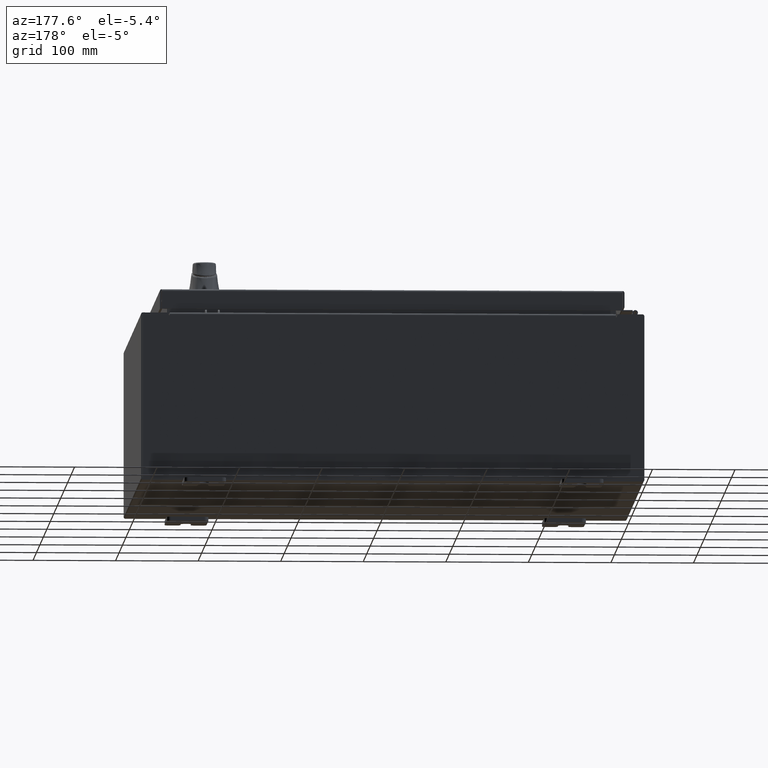
[diagram: clean part render]
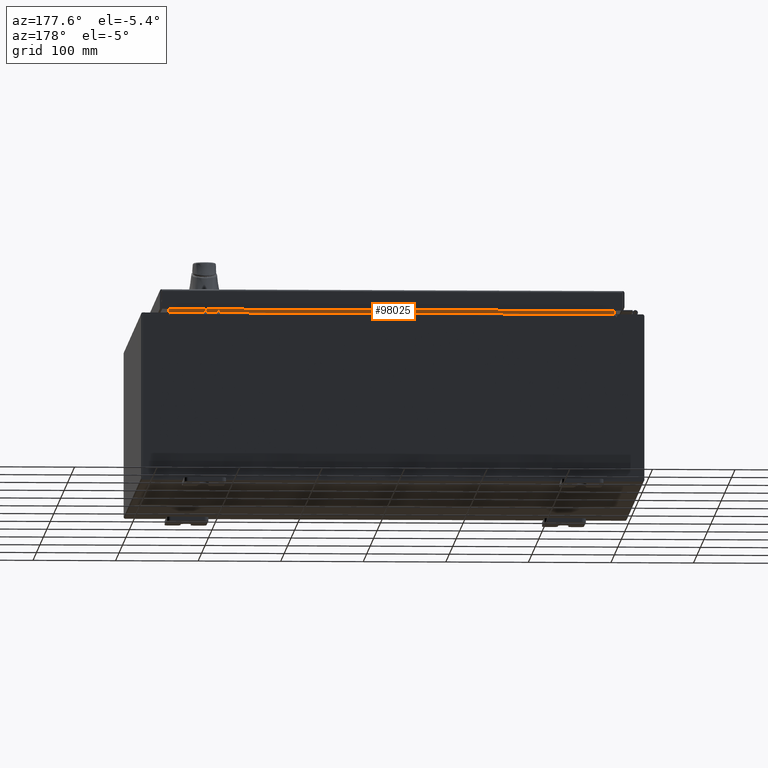
[diagram: same view with one face highlighted and labeled with its STEP entity id]
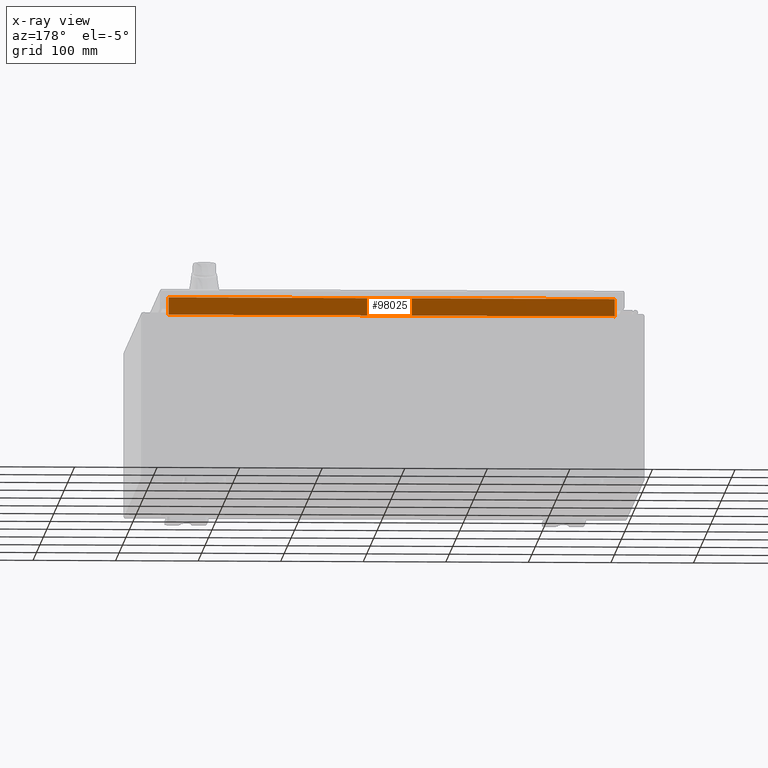
[diagram: x-ray of the same camera — body ghosted, the highlighted face saturated]
A machine part, auxiliary view. The second image highlights one B-rep face of the part: STEP entity #98025.
The next image is the same camera in x-ray: the body ghosted, the highlighted face saturated — about 0% of this face is hidden behind the body in this view.
In plain terms, the highlighted planar face has unit normal (0, 1, 0).
Its self-contained STEP definition (entity closure, byte-faithful):
#211 = AXIS2_PLACEMENT_3D ( 'NONE', #61490, #10353, #70029 ) ;
#1766 = PLANE ( 'NONE',  #211 ) ;
#7578 = ORIENTED_EDGE ( 'NONE', *, *, #43239, .F. ) ;
#7684 = VERTEX_POINT ( 'NONE', #47844 ) ;
#10353 = DIRECTION ( 'NONE',  ( 0.0000000000000000000, 1.000000000000000000, 0.0000000000000000000 ) ) ;
#11329 = CARTESIAN_POINT ( 'NONE',  ( 10.63720000000000200, -1.300299999999999300, 4.837600000000003700 ) ) ;
#13805 = EDGE_LOOP ( 'NONE', ( #7578, #110352, #25969, #47049 ) ) ;
#17099 = FACE_OUTER_BOUND ( 'NONE', #13805, .T. ) ;
#18773 = VERTEX_POINT ( 'NONE', #88611 ) ;
#19527 = EDGE_CURVE ( 'NONE', #35183, #7684, #70127, .T. ) ;
#23637 = LINE ( 'NONE', #32590, #63732 ) ;
#25969 = ORIENTED_EDGE ( 'NONE', *, *, #19527, .F. ) ;
#29836 = EDGE_CURVE ( 'NONE', #36108, #35183, #23637, .T. ) ;
#31854 = CARTESIAN_POINT ( 'NONE',  ( -10.63720000000000400, -1.300299999999999800, 4.013000000000003500 ) ) ;
#32590 = CARTESIAN_POINT ( 'NONE',  ( -10.63720000000000200, -1.300299999999999800, 4.013000000000003500 ) ) ;
#35183 = VERTEX_POINT ( 'NONE', #45127 ) ;
#36108 = VERTEX_POINT ( 'NONE', #31854 ) ;
#37236 = LINE ( 'NONE', #11329, #97330 ) ;
#39351 = VECTOR ( 'NONE', #57560, 39.37007874015748100 ) ;
#41154 = DIRECTION ( 'NONE',  ( 1.000000000000000000, 0.0000000000000000000, -2.568202152506545800E-017 ) ) ;
#43239 = EDGE_CURVE ( 'NONE', #18773, #36108, #43789, .T. ) ;
#43789 = LINE ( 'NONE', #100437, #89203 ) ;
#45127 = CARTESIAN_POINT ( 'NONE',  ( 10.63720000000000400, -1.300299999999999800, 4.013000000000003500 ) ) ;
#47049 = ORIENTED_EDGE ( 'NONE', *, *, #29836, .F. ) ;
#47844 = CARTESIAN_POINT ( 'NONE',  ( 10.63720000000000200, -1.300299999999999800, 4.837600000000003700 ) ) ;
#48537 = CARTESIAN_POINT ( 'NONE',  ( 10.63720000000000200, -1.300299999999999800, 4.925300000000004500 ) ) ;
#49912 = EDGE_CURVE ( 'NONE', #7684, #18773, #37236, .T. ) ;
#57560 = DIRECTION ( 'NONE',  ( -0.0000000000000000000, -0.0000000000000000000, 1.000000000000000000 ) ) ;
#61490 = CARTESIAN_POINT ( 'NONE',  ( 0.0000000000000000000, -1.300299999999999800, 0.0000000000000000000 ) ) ;
#62490 = DIRECTION ( 'NONE',  ( -1.000000000000000000, -0.0000000000000000000, -0.0000000000000000000 ) ) ;
#63732 = VECTOR ( 'NONE', #41154, 39.37007874015748100 ) ;
#70029 = DIRECTION ( 'NONE',  ( 0.0000000000000000000, -0.0000000000000000000, 1.000000000000000000 ) ) ;
#70127 = LINE ( 'NONE', #48537, #39351 ) ;
#88611 = CARTESIAN_POINT ( 'NONE',  ( -10.63720000000000200, -1.300299999999999300, 4.837600000000003700 ) ) ;
#89203 = VECTOR ( 'NONE', #109067, 39.37007874015748100 ) ;
#97330 = VECTOR ( 'NONE', #62490, 39.37007874015748100 ) ;
#98025 = ADVANCED_FACE ( 'NONE', ( #17099 ), #1766, .T. ) ;
#100437 = CARTESIAN_POINT ( 'NONE',  ( -10.63720000000000200, -1.300299999999999800, 4.000000000000004400 ) ) ;
#109067 = DIRECTION ( 'NONE',  ( -0.0000000000000000000, -0.0000000000000000000, -1.000000000000000000 ) ) ;
#110352 = ORIENTED_EDGE ( 'NONE', *, *, #49912, .F. ) ;